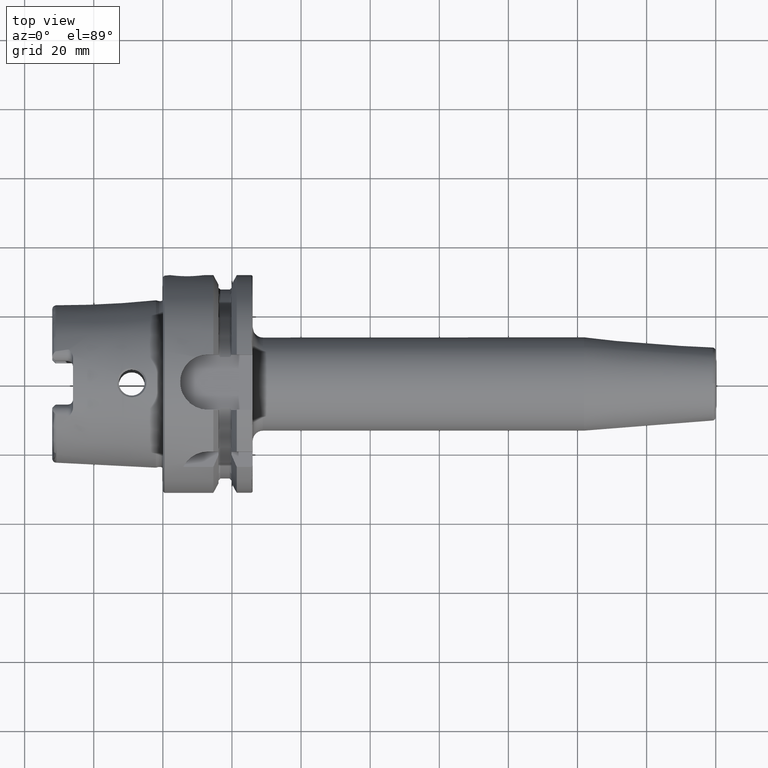
[diagram: clean part render]
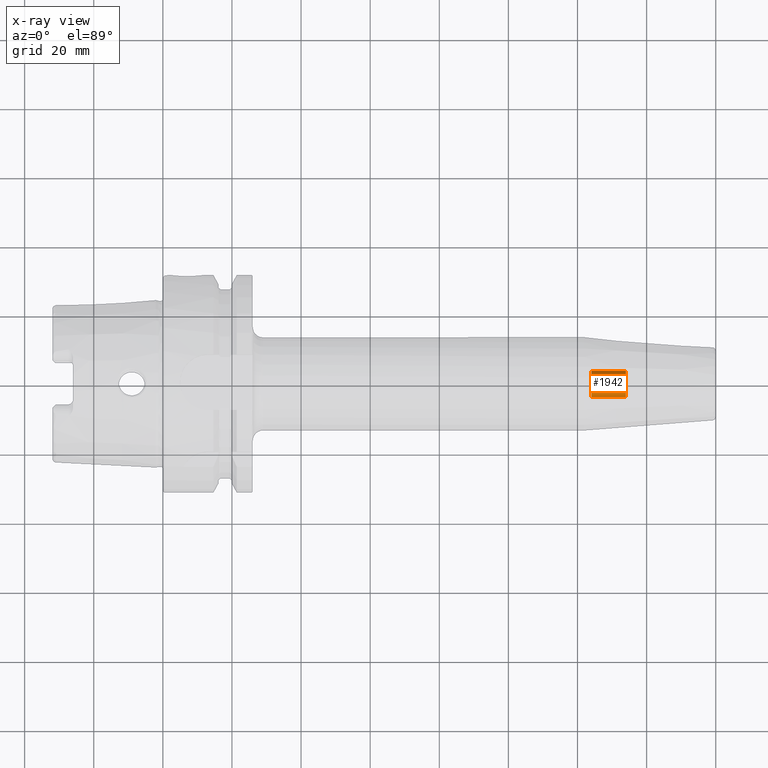
[diagram: x-ray — body ghosted, one internal face saturated and labeled with its STEP entity id]
A machine part, top view, then the same camera in x-ray: the body is ghosted and one INTERNAL B-rep face — a face not visible from any outside direction — is saturated and labeled: STEP entity #1942.
In plain terms, the highlighted cylindrical surface (bore or boss wall) has radius 3.775 mm, axis along (1, 0, 0).
Its self-contained STEP definition (entity closure, byte-faithful):
#198=FACE_OUTER_BOUND('',#317,.T.);
#317=EDGE_LOOP('',(#1328,#1329,#1330,#1331));
#444=LINE('',#2987,#550);
#550=VECTOR('',#2392,3.77500000000001);
#661=CIRCLE('',#2099,3.77500000000001);
#662=CIRCLE('',#2101,3.775);
#791=VERTEX_POINT('',#2983);
#792=VERTEX_POINT('',#2986);
#999=EDGE_CURVE('',#791,#791,#661,.T.);
#1000=EDGE_CURVE('',#791,#792,#444,.T.);
#1001=EDGE_CURVE('',#792,#792,#662,.T.);
#1328=ORIENTED_EDGE('',*,*,#999,.T.);
#1329=ORIENTED_EDGE('',*,*,#1000,.T.);
#1330=ORIENTED_EDGE('',*,*,#1001,.F.);
#1331=ORIENTED_EDGE('',*,*,#1000,.F.);
#1901=CYLINDRICAL_SURFACE('',#2100,3.77500000000001);
#1942=ADVANCED_FACE('',(#198),#1901,.F.);
#2099=AXIS2_PLACEMENT_3D('',#2984,#2388,#2389);
#2100=AXIS2_PLACEMENT_3D('',#2985,#2390,#2391);
#2101=AXIS2_PLACEMENT_3D('',#2988,#2393,#2394);
#2388=DIRECTION('center_axis',(1.,0.,0.));
#2389=DIRECTION('ref_axis',(0.,0.,-1.));
#2390=DIRECTION('center_axis',(1.,0.,0.));
#2391=DIRECTION('ref_axis',(0.,1.,0.));
#2392=DIRECTION('',(-1.,0.,0.));
#2393=DIRECTION('center_axis',(1.,0.,0.));
#2394=DIRECTION('ref_axis',(0.,0.,-1.));
#2983=CARTESIAN_POINT('',(134.,-3.77500000000001,-4.62304166678127E-16));
#2984=CARTESIAN_POINT('Origin',(134.,0.,0.));
#2985=CARTESIAN_POINT('Origin',(129.,0.,0.));
#2986=CARTESIAN_POINT('',(124.,-3.77500000000001,-4.62304166678127E-16));
#2987=CARTESIAN_POINT('',(129.,-3.77500000000001,-4.62304166678127E-16));
#2988=CARTESIAN_POINT('Origin',(124.,0.,0.));